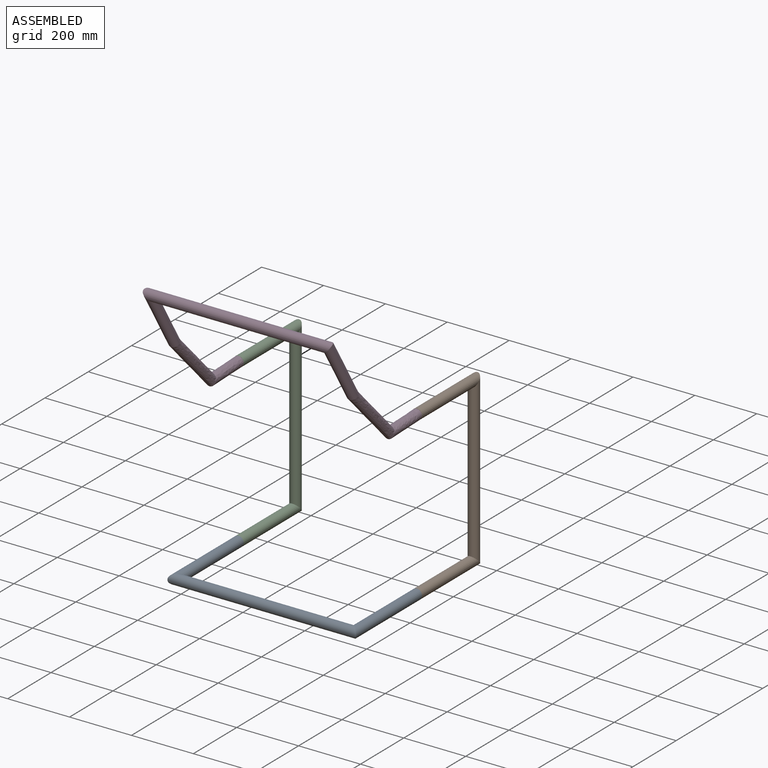
[diagram: assembled view]
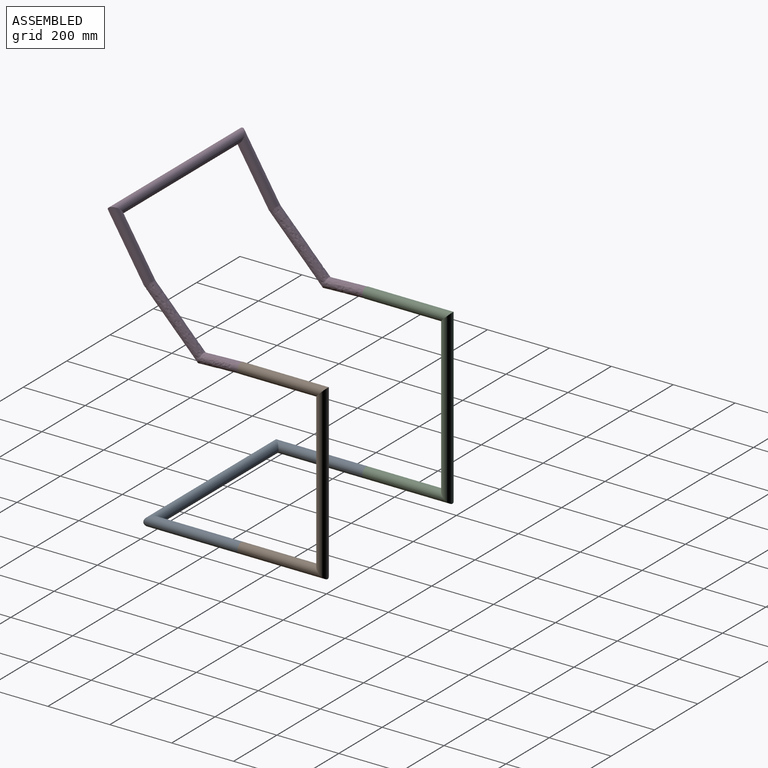
[diagram: assembled view, second angle]
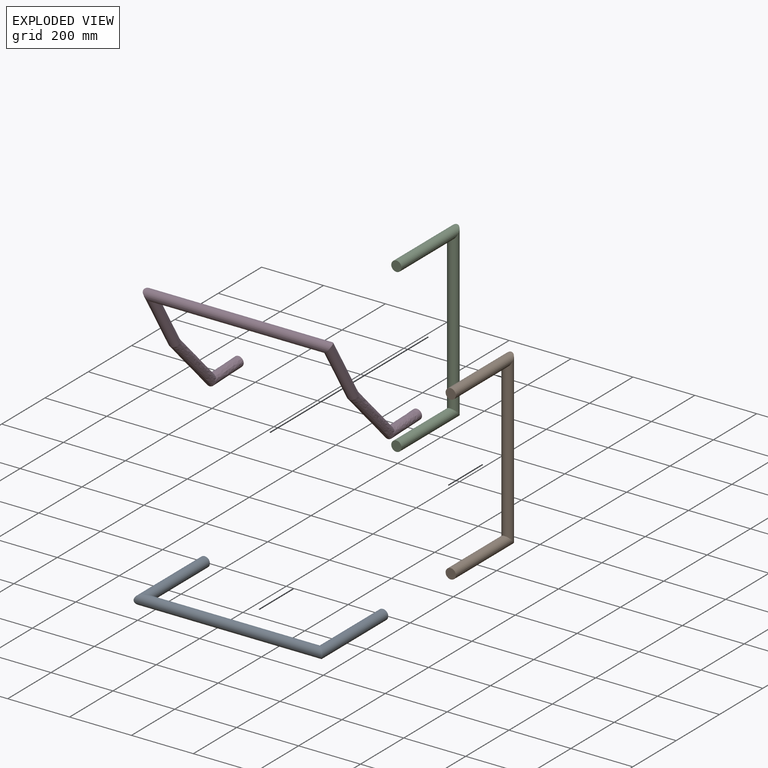
[diagram: exploded view]
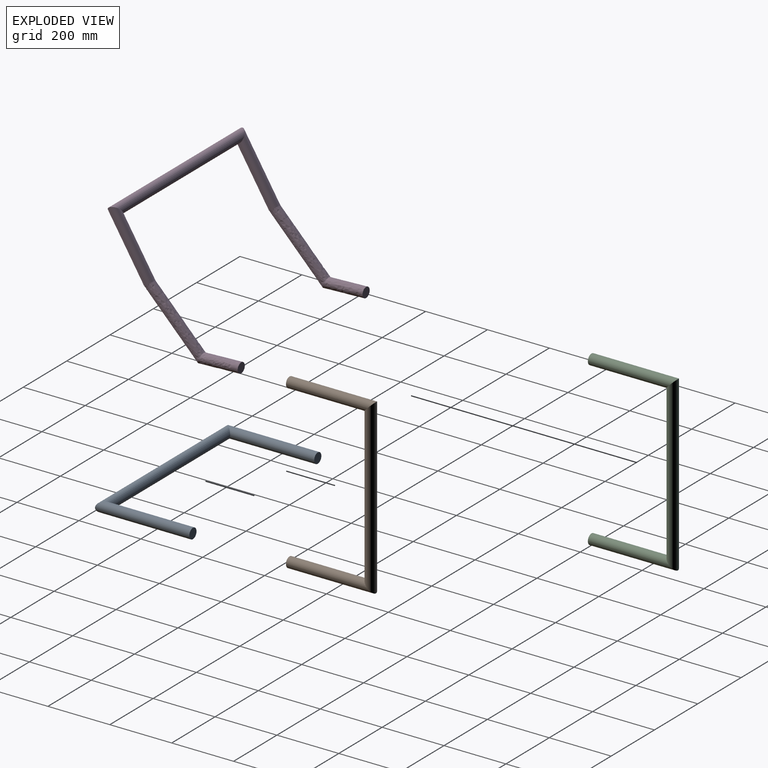
[diagram: exploded view, second angle]
ASSEMBLY  parts=4 mates=3
PART A: 5 faces, bbox 609.6x304.8x33.3 mm
  f0: plane 33.32x33.32mm, normal (0,1,0), area 872.2mm2, adj f2
  f1: plane 33.32x33.32mm, normal (0,1,0), area 872.2mm2, adj f4
  f2: cylinder r=16.66mm len=304.81mm, axis (0,1,0), area 30165.9mm2, adj f0,f3
  f3: cylinder r=16.66mm len=609.61mm, axis (1,0,0), area 60272.1mm2, adj f2,f4
  f4: cylinder r=16.66mm len=304.8mm, axis (0,-1,0), area 30106.3mm2, adj f1,f3
PART B: 5 faces, bbox 33.3x279.4x558.8 mm
  f0: plane 33.27x33.27mm, normal (0,-1,0), area 869.6mm2, adj f2
  f1: plane 33.27x33.27mm, normal (0,-1,0), area 869.6mm2, adj f4
  f2: cylinder r=16.64mm len=279.41mm, axis (0,-1,0), area 27467.5mm2, adj f0,f3
  f3: cylinder r=16.64mm len=558.82mm, axis (0,0,1), area 54935mm2, adj f2,f4
  f4: cylinder r=16.64mm len=279.41mm, axis (0,1,0), area 27467.5mm2, adj f1,f3
PART C: same geometry as B
PART D: 9 faces, bbox 642.9x541.4x194.7 mm
  f0: cylinder r=16.64mm len=228.6mm, axis (0,1,0), area 22097.8mm2, adj f1,f4
  f1: cylinder r=16.64mm len=609.61mm, axis (1,0,0), area 60126.5mm2, adj f0,f2
  f2: cylinder r=16.64mm len=228.6mm, axis (0,-1,0), area 22097.8mm2, adj f1,f6
  f3: bspline ~139.4x90.64mm, area 13180.4mm2, adj f4,f8
  f4: bspline ~248.48x89.1mm, area 25069.3mm2, adj f0,f3
  f5: bspline ~139.4x90.64mm, area 13180.4mm2, adj f6,f7
  f6: bspline ~248.48x89.1mm, area 25069.3mm2, adj f2,f5
  f7: plane 33.28x27.7mm, normal (0,0.52,0.85), area 849mm2, adj f5
  f8: plane 33.28x27.7mm, normal (0,0.52,0.85), area 848.9mm2, adj f3
PLACE A t=(-36.53,-10.69,-19.76)mm fixed
PLACE B t=(556.41,294.11,-36.4)mm
PLACE C t=(-19.87,294.11,-36.4)mm
PLACE D rot(axis=(-1,0,0),58.5deg) t=(-36.55,-1.94,674.88)mm
MATE fastened D.f8 <-> B.f2  axis (0,1,0) through (556.41,294.11,505.77)mm
MATE fastened A.f2 <-> B.f4  axis (0,1,0) through (556.41,294.11,-19.76)mm
MATE fastened C.f4 <-> A.f4  axis (0,-1,0) through (-19.87,294.11,-19.76)mm
